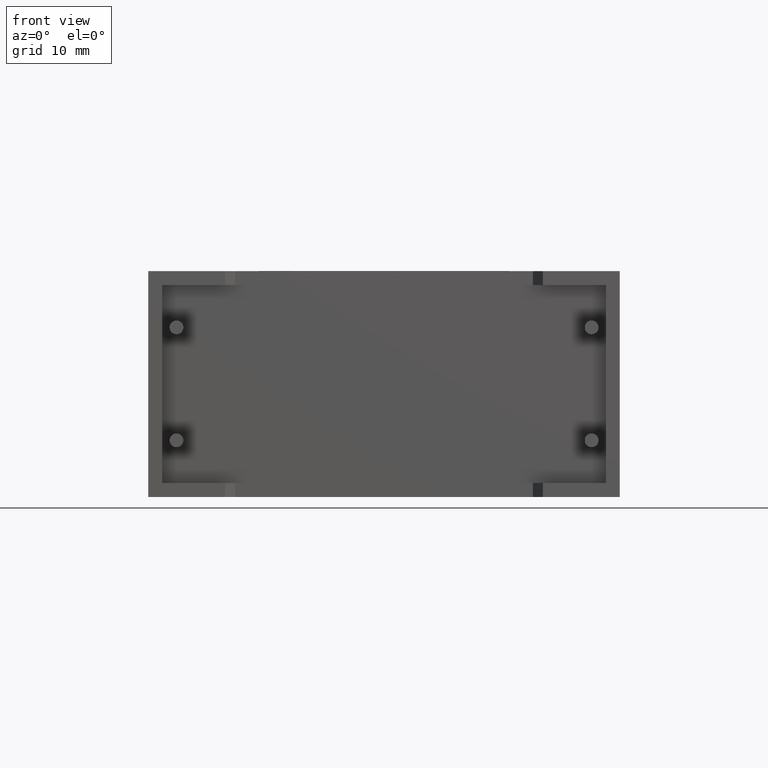
[diagram: clean part render]
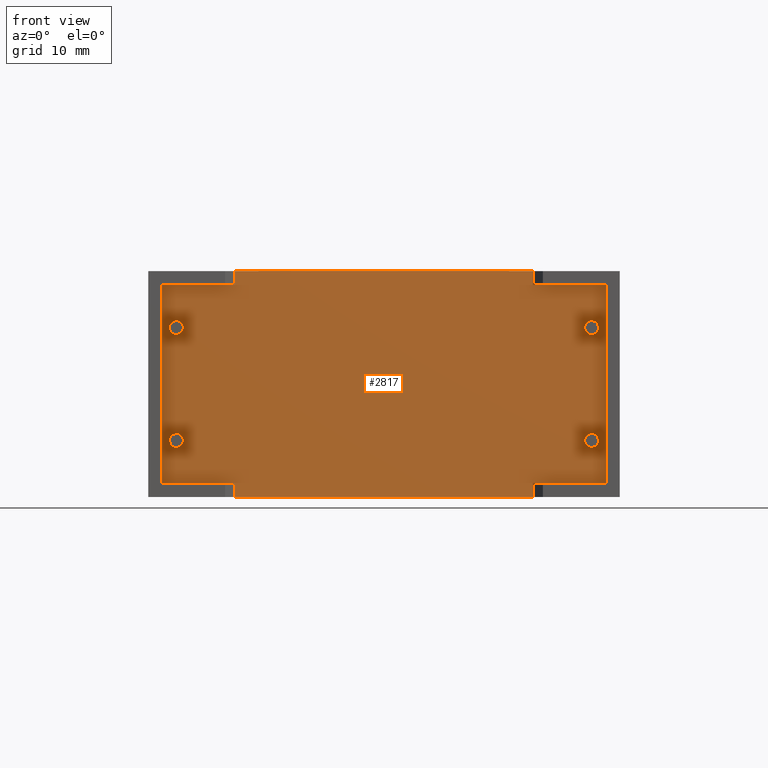
[diagram: same view with one face highlighted and labeled with its STEP entity id]
A machine part, front view. The second image highlights one B-rep face of the part: STEP entity #2817.
In plain terms, the highlighted planar face has unit normal (0, -1, 0).
Its self-contained STEP definition (entity closure, byte-faithful):
#31 = CARTESIAN_POINT ( 'NONE',  ( 7.850000000000001400, 1.181880000000004900, 20.39999999999999900 ) ) ;
#32 = EDGE_CURVE ( 'NONE', #2517, #79, #1100, .T. ) ;
#42 = VERTEX_POINT ( 'NONE', #1301 ) ;
#56 = VERTEX_POINT ( 'NONE', #554 ) ;
#79 = VERTEX_POINT ( 'NONE', #809 ) ;
#95 = EDGE_LOOP ( 'NONE', ( #1146, #1899 ) ) ;
#98 = DIRECTION ( 'NONE',  ( 0.0000000000000000000, -1.000000000000000000, 0.0000000000000000000 ) ) ;
#152 = DIRECTION ( 'NONE',  ( 0.0000000000000000000, -1.000000000000000000, 0.0000000000000000000 ) ) ;
#184 = EDGE_CURVE ( 'NONE', #2211, #2517, #1374, .T. ) ;
#186 = CARTESIAN_POINT ( 'NONE',  ( 41.34601200000000200, 1.181880000000000000, 19.14601199999999500 ) ) ;
#262 = CARTESIAN_POINT ( 'NONE',  ( 1.253987999999999900, 1.181880000000000000, 19.14601199999999500 ) ) ;
#263 = AXIS2_PLACEMENT_3D ( 'NONE', #2007, #98, #2260 ) ;
#277 = LINE ( 'NONE', #287, #2176 ) ;
#287 = CARTESIAN_POINT ( 'NONE',  ( 7.850000000000001400, 1.181880000000004900, 0.0000000000000000000 ) ) ;
#292 = AXIS2_PLACEMENT_3D ( 'NONE', #2577, #1375, #3067 ) ;
#347 = AXIS2_PLACEMENT_3D ( 'NONE', #3122, #963, #1469 ) ;
#375 = AXIS2_PLACEMENT_3D ( 'NONE', #2839, #2850, #895 ) ;
#394 = EDGE_LOOP ( 'NONE', ( #657, #1068, #2357, #2605, #3123, #1656, #987, #2522, #2071, #1804, #2474, #760 ) ) ;
#401 = EDGE_LOOP ( 'NONE', ( #839, #2129 ) ) ;
#408 = EDGE_CURVE ( 'NONE', #2669, #1298, #2800, .T. ) ;
#440 = VERTEX_POINT ( 'NONE', #2412 ) ;
#445 = EDGE_CURVE ( 'NONE', #2093, #1646, #829, .T. ) ;
#450 = AXIS2_PLACEMENT_3D ( 'NONE', #1186, #1213, #2897 ) ;
#457 = DIRECTION ( 'NONE',  ( 0.0000000000000000000, -1.000000000000000000, 0.0000000000000000000 ) ) ;
#494 = CARTESIAN_POINT ( 'NONE',  ( 2.550000000000000300, 1.181880000000000000, 15.29999999999999700 ) ) ;
#503 = EDGE_CURVE ( 'NONE', #56, #440, #2304, .T. ) ;
#542 = VECTOR ( 'NONE', #978, 1000.000000000000000 ) ;
#554 = CARTESIAN_POINT ( 'NONE',  ( 2.550000000000000300, 1.181879999999999800, 4.474999999999999600 ) ) ;
#579 = LINE ( 'NONE', #186, #1435 ) ;
#580 = CARTESIAN_POINT ( 'NONE',  ( 41.34601200000000200, 1.181880000000000000, 1.253987999999999900 ) ) ;
#657 = ORIENTED_EDGE ( 'NONE', *, *, #1859, .T. ) ;
#686 = CARTESIAN_POINT ( 'NONE',  ( 40.05000000000000400, 1.181879999999999800, 15.92499999999999900 ) ) ;
#688 = FACE_BOUND ( 'NONE', #95, .T. ) ;
#748 = CARTESIAN_POINT ( 'NONE',  ( 34.74999999999999300, 1.181880000000004900, 1.253987999999999900 ) ) ;
#760 = ORIENTED_EDGE ( 'NONE', *, *, #445, .F. ) ;
#809 = CARTESIAN_POINT ( 'NONE',  ( 34.74999999999999300, 1.181880000000004900, 19.14601199999999500 ) ) ;
#826 = EDGE_CURVE ( 'NONE', #3098, #2053, #2005, .T. ) ;
#829 = LINE ( 'NONE', #1458, #2685 ) ;
#838 = VERTEX_POINT ( 'NONE', #2521 ) ;
#839 = ORIENTED_EDGE ( 'NONE', *, *, #2343, .F. ) ;
#840 = CIRCLE ( 'NONE', #450, 0.6250000000000005600 ) ;
#861 = DIRECTION ( 'NONE',  ( 1.000000000000000000, 0.0000000000000000000, 0.0000000000000000000 ) ) ;
#895 = DIRECTION ( 'NONE',  ( 0.0000000000000000000, 0.0000000000000000000, -1.000000000000000000 ) ) ;
#903 = EDGE_CURVE ( 'NONE', #2348, #1386, #974, .T. ) ;
#910 = AXIS2_PLACEMENT_3D ( 'NONE', #2074, #152, #2534 ) ;
#929 = CARTESIAN_POINT ( 'NONE',  ( 34.74999999999999300, 1.181880000000004900, 20.39999999999999900 ) ) ;
#940 = VECTOR ( 'NONE', #1405, 1000.000000000000000 ) ;
#963 = DIRECTION ( 'NONE',  ( 0.0000000000000000000, -1.000000000000000000, 0.0000000000000000000 ) ) ;
#974 = LINE ( 'NONE', #2329, #2987 ) ;
#978 = DIRECTION ( 'NONE',  ( 1.000000000000000000, 0.0000000000000000000, 0.0000000000000000000 ) ) ;
#987 = ORIENTED_EDGE ( 'NONE', *, *, #1241, .F. ) ;
#996 = ORIENTED_EDGE ( 'NONE', *, *, #1739, .F. ) ;
#1006 = DIRECTION ( 'NONE',  ( -1.000000000000000000, 0.0000000000000000000, 0.0000000000000000000 ) ) ;
#1068 = ORIENTED_EDGE ( 'NONE', *, *, #2672, .T. ) ;
#1100 = LINE ( 'NONE', #2455, #2620 ) ;
#1146 = ORIENTED_EDGE ( 'NONE', *, *, #1645, .F. ) ;
#1172 = DIRECTION ( 'NONE',  ( -0.0000000000000000000, -0.0000000000000000000, 1.000000000000000000 ) ) ;
#1186 = CARTESIAN_POINT ( 'NONE',  ( 40.05000000000000400, 1.181880000000000000, 5.100000000000000500 ) ) ;
#1210 = LINE ( 'NONE', #2811, #940 ) ;
#1213 = DIRECTION ( 'NONE',  ( 0.0000000000000000000, -1.000000000000000000, 0.0000000000000000000 ) ) ;
#1234 = CARTESIAN_POINT ( 'NONE',  ( 40.05000000000000400, 1.181879999999999800, 14.67499999999999700 ) ) ;
#1241 = EDGE_CURVE ( 'NONE', #2016, #2053, #1210, .T. ) ;
#1292 = EDGE_CURVE ( 'NONE', #42, #838, #840, .T. ) ;
#1298 = VERTEX_POINT ( 'NONE', #686 ) ;
#1301 = CARTESIAN_POINT ( 'NONE',  ( 40.05000000000000400, 1.181880000000000000, 4.474999999999999600 ) ) ;
#1328 = PLANE ( 'NONE',  #1523 ) ;
#1339 = EDGE_CURVE ( 'NONE', #2136, #2325, #1719, .T. ) ;
#1363 = DIRECTION ( 'NONE',  ( 0.0000000000000000000, -1.000000000000000000, 0.0000000000000000000 ) ) ;
#1374 = LINE ( 'NONE', #580, #1817 ) ;
#1375 = DIRECTION ( 'NONE',  ( 0.0000000000000000000, -1.000000000000000000, 0.0000000000000000000 ) ) ;
#1386 = VERTEX_POINT ( 'NONE', #1504 ) ;
#1405 = DIRECTION ( 'NONE',  ( -0.0000000000000000000, -0.0000000000000000000, 1.000000000000000000 ) ) ;
#1421 = ORIENTED_EDGE ( 'NONE', *, *, #1339, .F. ) ;
#1425 = CARTESIAN_POINT ( 'NONE',  ( 40.05000000000000400, 1.181879999999999800, 15.29999999999999700 ) ) ;
#1435 = VECTOR ( 'NONE', #2316, 1000.000000000000000 ) ;
#1448 = CARTESIAN_POINT ( 'NONE',  ( 7.850000000000001400, 1.181880000000004900, 19.14601199999999500 ) ) ;
#1451 = EDGE_CURVE ( 'NONE', #1646, #1386, #277, .T. ) ;
#1458 = CARTESIAN_POINT ( 'NONE',  ( 21.30000000000000100, 1.181880000000006300, 0.0000000000000000000 ) ) ;
#1467 = EDGE_CURVE ( 'NONE', #2974, #2348, #1998, .T. ) ;
#1469 = DIRECTION ( 'NONE',  ( 0.0000000000000000000, 0.0000000000000000000, -1.000000000000000000 ) ) ;
#1472 = DIRECTION ( 'NONE',  ( 0.0000000000000000000, 0.0000000000000000000, -1.000000000000000000 ) ) ;
#1504 = CARTESIAN_POINT ( 'NONE',  ( 7.850000000000001400, 1.181880000000004900, 1.253987999999999900 ) ) ;
#1523 = AXIS2_PLACEMENT_3D ( 'NONE', #1807, #1363, #3053 ) ;
#1588 = DIRECTION ( 'NONE',  ( -1.000000000000000000, -9.673179234071416100E-017, 0.0000000000000000000 ) ) ;
#1607 = CARTESIAN_POINT ( 'NONE',  ( 2.550000000000000300, 1.181880000000000000, 15.92499999999999900 ) ) ;
#1619 = ORIENTED_EDGE ( 'NONE', *, *, #1798, .F. ) ;
#1633 = CARTESIAN_POINT ( 'NONE',  ( 1.253987999999999900, 1.181880000000000000, 19.14601199999999500 ) ) ;
#1645 = EDGE_CURVE ( 'NONE', #1298, #2669, #2754, .T. ) ;
#1646 = VERTEX_POINT ( 'NONE', #1769 ) ;
#1656 = ORIENTED_EDGE ( 'NONE', *, *, #826, .T. ) ;
#1719 = CIRCLE ( 'NONE', #2553, 0.6250000000000005600 ) ;
#1734 = EDGE_LOOP ( 'NONE', ( #996, #1857 ) ) ;
#1739 = EDGE_CURVE ( 'NONE', #440, #56, #1884, .T. ) ;
#1749 = CARTESIAN_POINT ( 'NONE',  ( 2.550000000000000300, 1.181880000000000000, 14.67499999999999700 ) ) ;
#1769 = CARTESIAN_POINT ( 'NONE',  ( 7.850000000000001400, 1.181880000000004900, 0.0000000000000000000 ) ) ;
#1787 = CARTESIAN_POINT ( 'NONE',  ( 21.30000000000000100, 1.181880000000006300, 20.39999999999999900 ) ) ;
#1798 = EDGE_CURVE ( 'NONE', #2325, #2136, #2944, .T. ) ;
#1804 = ORIENTED_EDGE ( 'NONE', *, *, #903, .T. ) ;
#1807 = CARTESIAN_POINT ( 'NONE',  ( 0.0000000000000000000, 1.181880000000000000, 0.0000000000000000000 ) ) ;
#1817 = VECTOR ( 'NONE', #2086, 1000.000000000000000 ) ;
#1857 = ORIENTED_EDGE ( 'NONE', *, *, #503, .F. ) ;
#1859 = EDGE_CURVE ( 'NONE', #2093, #2545, #3099, .T. ) ;
#1884 = CIRCLE ( 'NONE', #910, 0.6250000000000005600 ) ;
#1888 = CARTESIAN_POINT ( 'NONE',  ( 34.74999999999999300, 1.181880000000004900, 0.0000000000000000000 ) ) ;
#1899 = ORIENTED_EDGE ( 'NONE', *, *, #408, .F. ) ;
#1921 = VECTOR ( 'NONE', #2916, 1000.000000000000000 ) ;
#1998 = LINE ( 'NONE', #262, #1921 ) ;
#2005 = LINE ( 'NONE', #1787, #2616 ) ;
#2007 = CARTESIAN_POINT ( 'NONE',  ( 40.05000000000000400, 1.181879999999999800, 15.29999999999999700 ) ) ;
#2016 = VERTEX_POINT ( 'NONE', #1448 ) ;
#2053 = VERTEX_POINT ( 'NONE', #31 ) ;
#2071 = ORIENTED_EDGE ( 'NONE', *, *, #1467, .T. ) ;
#2074 = CARTESIAN_POINT ( 'NONE',  ( 2.550000000000000300, 1.181879999999999800, 5.100000000000000500 ) ) ;
#2083 = CARTESIAN_POINT ( 'NONE',  ( 1.253987999999999900, 1.181880000000000000, 1.253987999999999900 ) ) ;
#2086 = DIRECTION ( 'NONE',  ( 0.0000000000000000000, 0.0000000000000000000, 1.000000000000000000 ) ) ;
#2093 = VERTEX_POINT ( 'NONE', #2969 ) ;
#2129 = ORIENTED_EDGE ( 'NONE', *, *, #1292, .F. ) ;
#2136 = VERTEX_POINT ( 'NONE', #1749 ) ;
#2141 = VECTOR ( 'NONE', #3073, 1000.000000000000000 ) ;
#2144 = FACE_BOUND ( 'NONE', #2825, .T. ) ;
#2176 = VECTOR ( 'NONE', #2941, 1000.000000000000000 ) ;
#2186 = CIRCLE ( 'NONE', #292, 0.6250000000000005600 ) ;
#2211 = VERTEX_POINT ( 'NONE', #2268 ) ;
#2260 = DIRECTION ( 'NONE',  ( 0.0000000000000000000, 0.0000000000000000000, -1.000000000000000000 ) ) ;
#2268 = CARTESIAN_POINT ( 'NONE',  ( 41.34601200000000200, 1.181880000000000000, 1.253987999999999900 ) ) ;
#2304 = CIRCLE ( 'NONE', #347, 0.6250000000000005600 ) ;
#2316 = DIRECTION ( 'NONE',  ( -1.000000000000000000, 0.0000000000000000000, 0.0000000000000000000 ) ) ;
#2321 = FACE_BOUND ( 'NONE', #401, .T. ) ;
#2325 = VERTEX_POINT ( 'NONE', #1607 ) ;
#2329 = CARTESIAN_POINT ( 'NONE',  ( 1.253987999999999900, 1.181880000000000000, 1.253987999999999900 ) ) ;
#2333 = DIRECTION ( 'NONE',  ( 0.0000000000000000000, 0.0000000000000000000, -1.000000000000000000 ) ) ;
#2334 = VECTOR ( 'NONE', #1172, 1000.000000000000000 ) ;
#2339 = EDGE_CURVE ( 'NONE', #2016, #2974, #579, .T. ) ;
#2343 = EDGE_CURVE ( 'NONE', #838, #42, #2186, .T. ) ;
#2348 = VERTEX_POINT ( 'NONE', #2083 ) ;
#2357 = ORIENTED_EDGE ( 'NONE', *, *, #184, .T. ) ;
#2387 = CARTESIAN_POINT ( 'NONE',  ( 41.34601200000000200, 1.181880000000000000, 19.14601199999999500 ) ) ;
#2394 = LINE ( 'NONE', #2856, #2141 ) ;
#2398 = FACE_OUTER_BOUND ( 'NONE', #394, .T. ) ;
#2412 = CARTESIAN_POINT ( 'NONE',  ( 2.550000000000000300, 1.181879999999999800, 5.725000000000000500 ) ) ;
#2427 = CARTESIAN_POINT ( 'NONE',  ( 1.253987999999999900, 1.181880000000000000, 1.253987999999999900 ) ) ;
#2455 = CARTESIAN_POINT ( 'NONE',  ( 41.34601200000000200, 1.181880000000000000, 19.14601199999999500 ) ) ;
#2474 = ORIENTED_EDGE ( 'NONE', *, *, #1451, .F. ) ;
#2511 = FACE_BOUND ( 'NONE', #1734, .T. ) ;
#2517 = VERTEX_POINT ( 'NONE', #2387 ) ;
#2521 = CARTESIAN_POINT ( 'NONE',  ( 40.05000000000000400, 1.181880000000000000, 5.725000000000000500 ) ) ;
#2522 = ORIENTED_EDGE ( 'NONE', *, *, #2339, .T. ) ;
#2534 = DIRECTION ( 'NONE',  ( 0.0000000000000000000, 0.0000000000000000000, -1.000000000000000000 ) ) ;
#2545 = VERTEX_POINT ( 'NONE', #748 ) ;
#2553 = AXIS2_PLACEMENT_3D ( 'NONE', #494, #457, #1472 ) ;
#2577 = CARTESIAN_POINT ( 'NONE',  ( 40.05000000000000400, 1.181880000000000000, 5.100000000000000500 ) ) ;
#2605 = ORIENTED_EDGE ( 'NONE', *, *, #32, .T. ) ;
#2616 = VECTOR ( 'NONE', #1588, 1000.000000000000000 ) ;
#2620 = VECTOR ( 'NONE', #1006, 1000.000000000000000 ) ;
#2635 = DIRECTION ( 'NONE',  ( -1.000000000000000000, -9.673179234071416100E-017, 0.0000000000000000000 ) ) ;
#2669 = VERTEX_POINT ( 'NONE', #1234 ) ;
#2672 = EDGE_CURVE ( 'NONE', #2545, #2211, #2859, .T. ) ;
#2685 = VECTOR ( 'NONE', #2635, 1000.000000000000000 ) ;
#2754 = CIRCLE ( 'NONE', #263, 0.6250000000000005600 ) ;
#2800 = CIRCLE ( 'NONE', #2998, 0.6250000000000005600 ) ;
#2811 = CARTESIAN_POINT ( 'NONE',  ( 7.850000000000001400, 1.181880000000004900, 0.0000000000000000000 ) ) ;
#2817 = ADVANCED_FACE ( 'NONE', ( #2144, #2398, #2511, #688, #2321 ), #1328, .T. ) ;
#2825 = EDGE_LOOP ( 'NONE', ( #1619, #1421 ) ) ;
#2839 = CARTESIAN_POINT ( 'NONE',  ( 2.550000000000000300, 1.181880000000000000, 15.29999999999999700 ) ) ;
#2850 = DIRECTION ( 'NONE',  ( 0.0000000000000000000, -1.000000000000000000, 0.0000000000000000000 ) ) ;
#2851 = DIRECTION ( 'NONE',  ( 0.0000000000000000000, -1.000000000000000000, 0.0000000000000000000 ) ) ;
#2856 = CARTESIAN_POINT ( 'NONE',  ( 34.74999999999999300, 1.181880000000004900, 0.0000000000000000000 ) ) ;
#2859 = LINE ( 'NONE', #2427, #542 ) ;
#2897 = DIRECTION ( 'NONE',  ( 0.0000000000000000000, 0.0000000000000000000, 1.000000000000000000 ) ) ;
#2916 = DIRECTION ( 'NONE',  ( 0.0000000000000000000, 0.0000000000000000000, -1.000000000000000000 ) ) ;
#2941 = DIRECTION ( 'NONE',  ( -0.0000000000000000000, -0.0000000000000000000, 1.000000000000000000 ) ) ;
#2944 = CIRCLE ( 'NONE', #375, 0.6250000000000005600 ) ;
#2969 = CARTESIAN_POINT ( 'NONE',  ( 34.74999999999999300, 1.181880000000004900, 0.0000000000000000000 ) ) ;
#2974 = VERTEX_POINT ( 'NONE', #1633 ) ;
#2976 = EDGE_CURVE ( 'NONE', #79, #3098, #2394, .T. ) ;
#2987 = VECTOR ( 'NONE', #861, 1000.000000000000000 ) ;
#2998 = AXIS2_PLACEMENT_3D ( 'NONE', #1425, #2851, #2333 ) ;
#3053 = DIRECTION ( 'NONE',  ( 0.0000000000000000000, -0.0000000000000000000, -1.000000000000000000 ) ) ;
#3067 = DIRECTION ( 'NONE',  ( 0.0000000000000000000, 0.0000000000000000000, 1.000000000000000000 ) ) ;
#3073 = DIRECTION ( 'NONE',  ( -0.0000000000000000000, -0.0000000000000000000, 1.000000000000000000 ) ) ;
#3098 = VERTEX_POINT ( 'NONE', #929 ) ;
#3099 = LINE ( 'NONE', #1888, #2334 ) ;
#3122 = CARTESIAN_POINT ( 'NONE',  ( 2.550000000000000300, 1.181879999999999800, 5.100000000000000500 ) ) ;
#3123 = ORIENTED_EDGE ( 'NONE', *, *, #2976, .T. ) ;